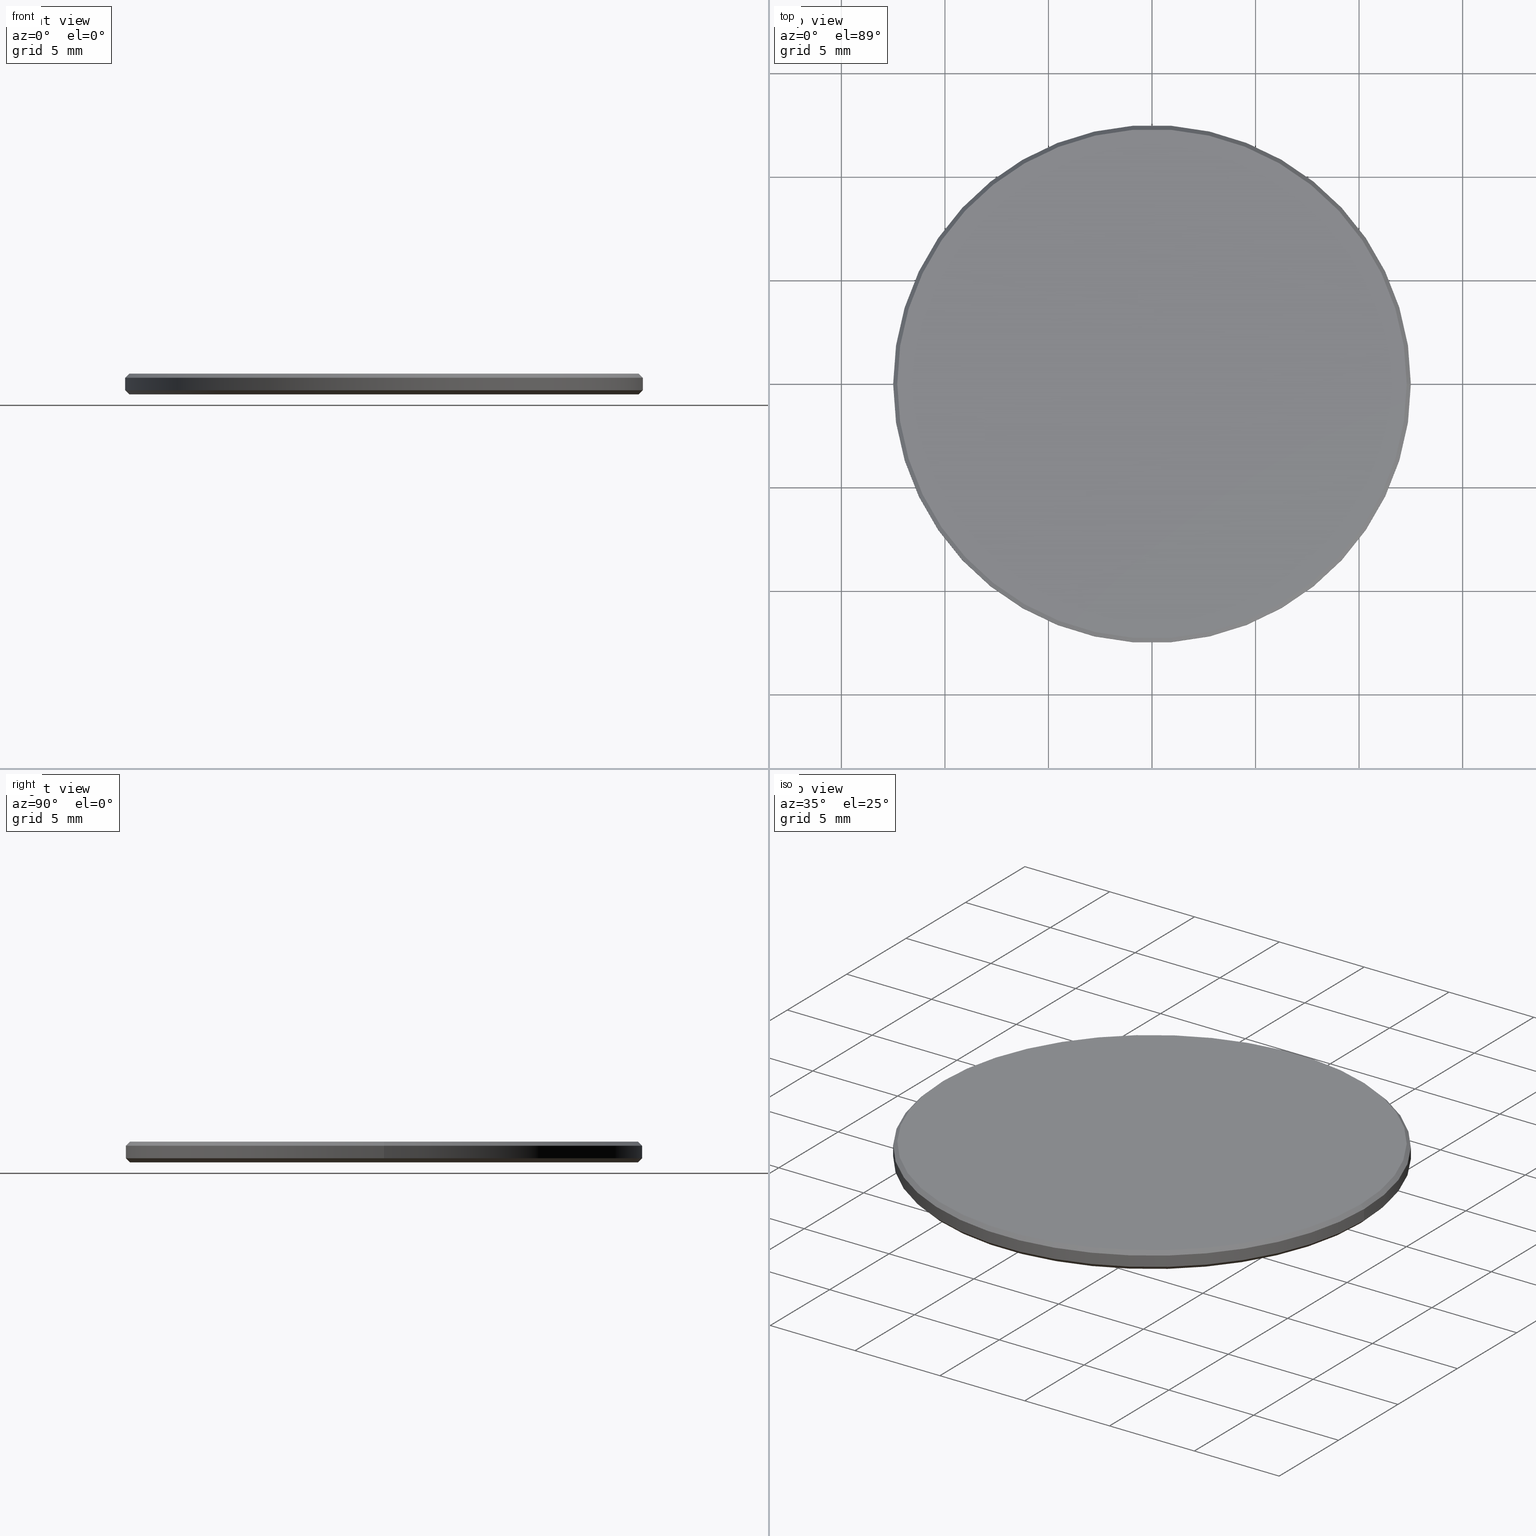
[diagram: canonical four-view strip — front | top / right | iso, engineering-drawing reading convention]
A machine part, canonical four-view strip (front | top / right | iso — engineering-drawing reading convention). The complete STEP part file that produces these views, byte-faithful:
ISO-10303-21;
HEADER;
FILE_DESCRIPTION (( 'STEP AP214' ),
    '1' );
FILE_NAME ('GNIF-170-4260-D25.STEP',
    '2024-07-19T14:30:28',
    ( '' ),
    ( '' ),
    'SwSTEP 2.0',
    'SolidWorks 2022',
    '' );
FILE_SCHEMA (( 'AUTOMOTIVE_DESIGN' ));
ENDSEC;

DATA;
#1 = FACE_OUTER_BOUND ( 'NONE', #153, .T. ) ;
#2 = ORIENTED_EDGE ( 'NONE', *, *, #102, .F. ) ;
#3 = ADVANCED_FACE ( 'NONE', ( #101 ), #23, .T. ) ;
#4 = DIRECTION ( 'NONE',  ( 1.000000000000000000, 0.000000000000000000, 0.000000000000000000 ) ) ;
#5 =( GEOMETRIC_REPRESENTATION_CONTEXT ( 3 ) GLOBAL_UNCERTAINTY_ASSIGNED_CONTEXT ( ( #178 ) ) GLOBAL_UNIT_ASSIGNED_CONTEXT ( ( #218, #55, #128 ) ) REPRESENTATION_CONTEXT ( 'NONE', 'WORKASPACE' ) );
#6 = CARTESIAN_POINT ( 'NONE',  ( 0.000000000000000000, 0.000000000000000000, 0.8000000000000029310 ) ) ;
#7 = ADVANCED_FACE ( 'NONE', ( #170 ), #237, .T. ) ;
#8 = DIRECTION ( 'NONE',  ( -0.000000000000000000, -0.000000000000000000, -1.000000000000000000 ) ) ;
#9 = DIRECTION ( 'NONE',  ( -0.000000000000000000, -0.000000000000000000, -1.000000000000000000 ) ) ;
#10 = CARTESIAN_POINT ( 'NONE',  ( 12.50000000000000000, 1.530808498934191521E-15, 1.000000000000000000 ) ) ;
#11 = PRODUCT_RELATED_PRODUCT_CATEGORY ( 'part', '', ( #181 ) ) ;
#12 = CARTESIAN_POINT ( 'NONE',  ( 12.50000000000000000, 0.000000000000000000, 0.1999999999999987899 ) ) ;
#13 = AXIS2_PLACEMENT_3D ( 'NONE', #198, #210, #45 ) ;
#14 = LINE ( 'NONE', #10, #15 ) ;
#15 = VECTOR ( 'NONE', #9, 1000.000000000000000 ) ;
#16 =( LENGTH_UNIT ( ) NAMED_UNIT ( * ) SI_UNIT ( .MILLI., .METRE. ) );
#17 = EDGE_LOOP ( 'NONE', ( #25, #239 ) ) ;
#18 = FILL_AREA_STYLE_COLOUR ( '', #213 ) ;
#19 = ORIENTED_EDGE ( 'NONE', *, *, #106, .T. ) ;
#20 = EDGE_LOOP ( 'NONE', ( #116, #65, #19, #187 ) ) ;
#21 = LINE ( 'NONE', #222, #90 ) ;
#22 = ORIENTED_EDGE ( 'NONE', *, *, #80, .T. ) ;
#23 = CYLINDRICAL_SURFACE ( 'NONE', #188, 12.50000000000000000 ) ;
#24 = CARTESIAN_POINT ( 'NONE',  ( 0.000000000000000000, 0.000000000000000000, 0.000000000000000000 ) ) ;
#25 = ORIENTED_EDGE ( 'NONE', *, *, #33, .T. ) ;
#26 = CARTESIAN_POINT ( 'NONE',  ( 0.000000000000000000, 0.000000000000000000, 1.000000000000000000 ) ) ;
#27 = CARTESIAN_POINT ( 'NONE',  ( 12.29999999999999893, 1.506315562951244216E-15, 1.000000000000000000 ) ) ;
#28 = AXIS2_PLACEMENT_3D ( 'NONE', #208, #42, #4 ) ;
#29 = ADVANCED_FACE ( 'NONE', ( #193 ), #184, .T. ) ;
#30 = DIRECTION ( 'NONE',  ( -0.000000000000000000, -0.000000000000000000, 1.000000000000000000 ) ) ;
#31 = SURFACE_STYLE_FILL_AREA ( #74 ) ;
#32 = CARTESIAN_POINT ( 'NONE',  ( 0.000000000000000000, 0.000000000000000000, 0.1999999999999987899 ) ) ;
#33 = EDGE_CURVE ( 'NONE', #151, #43, #72, .T. ) ;
#34 = AXIS2_PLACEMENT_3D ( 'NONE', #137, #84, #149 ) ;
#35 = COLOUR_RGB ( '',1.000000000000000000, 1.000000000000000000, 1.000000000000000000 ) ;
#36 = CIRCLE ( 'NONE', #73, 12.29999999999999893 ) ;
#37 = ADVANCED_BREP_SHAPE_REPRESENTATION ( 'GNIF-170-4260-D25', ( #221, #236 ), #61 ) ;
#38 = EDGE_LOOP ( 'NONE', ( #41, #135 ) ) ;
#39 = ADVANCED_FACE ( 'NONE', ( #103 ), #154, .T. ) ;
#40 = VERTEX_POINT ( 'NONE', #138 ) ;
#41 = ORIENTED_EDGE ( 'NONE', *, *, #102, .T. ) ;
#42 = DIRECTION ( 'NONE',  ( -0.000000000000000000, -0.000000000000000000, 1.000000000000000000 ) ) ;
#43 = VERTEX_POINT ( 'NONE', #134 ) ;
#44 = CIRCLE ( 'NONE', #13, 12.30000000000000249 ) ;
#45 = DIRECTION ( 'NONE',  ( 1.000000000000000000, 0.000000000000000000, 0.000000000000000000 ) ) ;
#46 = DIRECTION ( 'NONE',  ( 1.000000000000000000, 0.000000000000000000, 0.000000000000000000 ) ) ;
#47 = CARTESIAN_POINT ( 'NONE',  ( 12.30000000000000249, 0.000000000000000000, 0.000000000000000000 ) ) ;
#48 = PRODUCT_DEFINITION_CONTEXT ( 'detailed design', #228, 'design' ) ;
#49 = CARTESIAN_POINT ( 'NONE',  ( 0.000000000000000000, 0.000000000000000000, 0.8000000000000029310 ) ) ;
#50 = EDGE_CURVE ( 'NONE', #191, #105, #21, .T. ) ;
#51 =( NAMED_UNIT ( * ) SI_UNIT ( $, .STERADIAN. ) SOLID_ANGLE_UNIT ( ) );
#52 = PRODUCT_DEFINITION_SHAPE ( 'NONE', 'NONE',  #68 ) ;
#53 = UNCERTAINTY_MEASURE_WITH_UNIT (LENGTH_MEASURE( 1.000000000000000082E-05 ), #16, 'distance_accuracy_value', 'NONE');
#54 = EDGE_CURVE ( 'NONE', #105, #79, #234, .T. ) ;
#55 =( NAMED_UNIT ( * ) PLANE_ANGLE_UNIT ( ) SI_UNIT ( $, .RADIAN. ) );
#56 = ORIENTED_EDGE ( 'NONE', *, *, #142, .F. ) ;
#57 = AXIS2_PLACEMENT_3D ( 'NONE', #49, #180, #197 ) ;
#58 = AXIS2_PLACEMENT_3D ( 'NONE', #159, #95, #71 ) ;
#59 = EDGE_CURVE ( 'NONE', #105, #115, #122, .T. ) ;
#60 = CARTESIAN_POINT ( 'NONE',  ( 0.000000000000000000, 0.000000000000000000, 0.1999999999999987899 ) ) ;
#61 =( GEOMETRIC_REPRESENTATION_CONTEXT ( 3 ) GLOBAL_UNCERTAINTY_ASSIGNED_CONTEXT ( ( #53 ) ) GLOBAL_UNIT_ASSIGNED_CONTEXT ( ( #16, #97, #51 ) ) REPRESENTATION_CONTEXT ( 'NONE', 'WORKASPACE' ) );
#62 = CARTESIAN_POINT ( 'NONE',  ( 0.000000000000000000, 0.000000000000000000, 1.000000000000000000 ) ) ;
#63 = ORIENTED_EDGE ( 'NONE', *, *, #106, .F. ) ;
#64 = DIRECTION ( 'NONE',  ( -0.000000000000000000, -0.000000000000000000, -1.000000000000000000 ) ) ;
#65 = ORIENTED_EDGE ( 'NONE', *, *, #33, .F. ) ;
#66 =( GEOMETRIC_REPRESENTATION_CONTEXT ( 3 ) GLOBAL_UNCERTAINTY_ASSIGNED_CONTEXT ( ( #215 ) ) GLOBAL_UNIT_ASSIGNED_CONTEXT ( ( #141, #177, #92 ) ) REPRESENTATION_CONTEXT ( 'NONE', 'WORKASPACE' ) );
#67 = LINE ( 'NONE', #12, #147 ) ;
#68 = PRODUCT_DEFINITION ( 'δ֪', '', #69, #48 ) ;
#69 = PRODUCT_DEFINITION_FORMATION_WITH_SPECIFIED_SOURCE ( '�κ�', '', #181, .NOT_KNOWN. ) ;
#70 = DIRECTION ( 'NONE',  ( -0.7071067811865474617, 8.659560562354932858E-17, 0.7071067811865474617 ) ) ;
#71 = DIRECTION ( 'NONE',  ( 1.000000000000000000, 0.000000000000000000, 0.000000000000000000 ) ) ;
#72 = CIRCLE ( 'NONE', #201, 12.30000000000000249 ) ;
#73 = AXIS2_PLACEMENT_3D ( 'NONE', #107, #127, #196 ) ;
#74 = FILL_AREA_STYLE ('',( #163 ) ) ;
#75 = PRESENTATION_LAYER_ASSIGNMENT (  '', '', ( #176 ) ) ;
#76 = ADVANCED_FACE ( 'NONE', ( #1 ), #139, .T. ) ;
#77 = DIRECTION ( 'NONE',  ( 1.000000000000000000, 0.000000000000000000, 0.000000000000000000 ) ) ;
#78 = DIRECTION ( 'NONE',  ( 0.000000000000000000, 0.000000000000000000, 1.000000000000000000 ) ) ;
#79 = VERTEX_POINT ( 'NONE', #209 ) ;
#80 = EDGE_CURVE ( 'NONE', #145, #115, #167, .T. ) ;
#81 = CIRCLE ( 'NONE', #232, 12.29999999999999893 ) ;
#82 = CIRCLE ( 'NONE', #58, 12.50000000000000000 ) ;
#83 = APPLICATION_CONTEXT ( 'automotive_design' ) ;
#84 = DIRECTION ( 'NONE',  ( 0.000000000000000000, 0.000000000000000000, -1.000000000000000000 ) ) ;
#85 = DIRECTION ( 'NONE',  ( 0.000000000000000000, 0.000000000000000000, 1.000000000000000000 ) ) ;
#86 = ORIENTED_EDGE ( 'NONE', *, *, #50, .T. ) ;
#87 = DIRECTION ( 'NONE',  ( 0.000000000000000000, 0.000000000000000000, -1.000000000000000000 ) ) ;
#88 = DIRECTION ( 'NONE',  ( 1.000000000000000000, 0.000000000000000000, 0.000000000000000000 ) ) ;
#89 = CARTESIAN_POINT ( 'NONE',  ( -12.29999999999999893, 0.000000000000000000, 1.000000000000000000 ) ) ;
#90 = VECTOR ( 'NONE', #173, 1000.000000000000000 ) ;
#91 = LINE ( 'NONE', #194, #94 ) ;
#92 =( NAMED_UNIT ( * ) SI_UNIT ( $, .STERADIAN. ) SOLID_ANGLE_UNIT ( ) );
#93 = DIRECTION ( 'NONE',  ( 1.000000000000000000, 0.000000000000000000, 0.000000000000000000 ) ) ;
#94 = VECTOR ( 'NONE', #70, 1000.000000000000114 ) ;
#95 = DIRECTION ( 'NONE',  ( -0.000000000000000000, -0.000000000000000000, 1.000000000000000000 ) ) ;
#96 = ORIENTED_EDGE ( 'NONE', *, *, #150, .T. ) ;
#97 =( NAMED_UNIT ( * ) PLANE_ANGLE_UNIT ( ) SI_UNIT ( $, .RADIAN. ) );
#98 = ORIENTED_EDGE ( 'NONE', *, *, #59, .F. ) ;
#99 = DIRECTION ( 'NONE',  ( 0.000000000000000000, 0.000000000000000000, -1.000000000000000000 ) ) ;
#100 = ORIENTED_EDGE ( 'NONE', *, *, #200, .T. ) ;
#101 = FACE_OUTER_BOUND ( 'NONE', #225, .T. ) ;
#102 = EDGE_CURVE ( 'NONE', #191, #40, #36, .T. ) ;
#103 = FACE_OUTER_BOUND ( 'NONE', #38, .T. ) ;
#104 = AXIS2_PLACEMENT_3D ( 'NONE', #60, #207, #46 ) ;
#105 = VERTEX_POINT ( 'NONE', #229 ) ;
#106 = EDGE_CURVE ( 'NONE', #151, #145, #67, .T. ) ;
#107 = CARTESIAN_POINT ( 'NONE',  ( 0.000000000000000000, 0.000000000000000000, 1.000000000000000000 ) ) ;
#108 = DIRECTION ( 'NONE',  ( -1.000000000000000000, 0.000000000000000000, 0.000000000000000000 ) ) ;
#109 = DIRECTION ( 'NONE',  ( 0.7071067811865474617, 0.000000000000000000, 0.7071067811865474617 ) ) ;
#110 = PLANE ( 'NONE',  #199 ) ;
#111 = DIRECTION ( 'NONE',  ( 0.000000000000000000, 0.000000000000000000, 1.000000000000000000 ) ) ;
#112 = CIRCLE ( 'NONE', #57, 12.50000000000000000 ) ;
#113 = ORIENTED_EDGE ( 'NONE', *, *, #54, .T. ) ;
#114 = FILL_AREA_STYLE ('',( #18 ) ) ;
#115 = VERTEX_POINT ( 'NONE', #195 ) ;
#116 = ORIENTED_EDGE ( 'NONE', *, *, #158, .F. ) ;
#117 = EDGE_LOOP ( 'NONE', ( #56, #203, #219, #146 ) ) ;
#118 = ORIENTED_EDGE ( 'NONE', *, *, #119, .F. ) ;
#119 = EDGE_CURVE ( 'NONE', #43, #151, #44, .T. ) ;
#120 = ORIENTED_EDGE ( 'NONE', *, *, #183, .F. ) ;
#121 = EDGE_LOOP ( 'NONE', ( #120, #96, #166, #100 ) ) ;
#122 = LINE ( 'NONE', #169, #240 ) ;
#123 = VECTOR ( 'NONE', #157, 1000.000000000000000 ) ;
#124 = ADVANCED_FACE ( 'NONE', ( #125 ), #161, .T. ) ;
#125 = FACE_OUTER_BOUND ( 'NONE', #20, .T. ) ;
#126 = FACE_OUTER_BOUND ( 'NONE', #17, .T. ) ;
#127 = DIRECTION ( 'NONE',  ( 0.000000000000000000, 0.000000000000000000, 1.000000000000000000 ) ) ;
#128 =( NAMED_UNIT ( * ) SI_UNIT ( $, .STERADIAN. ) SOLID_ANGLE_UNIT ( ) );
#129 = APPLICATION_PROTOCOL_DEFINITION ( 'draft international standard', 'automotive_design', 1998, #83 ) ;
#130 = DIRECTION ( 'NONE',  ( 1.000000000000000000, 0.000000000000000000, -0.000000000000000000 ) ) ;
#131 = AXIS2_PLACEMENT_3D ( 'NONE', #32, #30, #93 ) ;
#132 = PRODUCT_CONTEXT ( 'NONE', #83, 'mechanical' ) ;
#133 = EDGE_LOOP ( 'NONE', ( #118, #186, #171, #63 ) ) ;
#134 = CARTESIAN_POINT ( 'NONE',  ( -12.30000000000000249, 1.518562030942718164E-15, 0.000000000000000000 ) ) ;
#135 = ORIENTED_EDGE ( 'NONE', *, *, #142, .T. ) ;
#136 = ORIENTED_EDGE ( 'NONE', *, *, #183, .T. ) ;
#137 = CARTESIAN_POINT ( 'NONE',  ( 0.000000000000000000, 0.000000000000000000, 1.000000000000000000 ) ) ;
#138 = CARTESIAN_POINT ( 'NONE',  ( 12.29999999999999893, 1.518562030942717967E-15, 1.000000000000000000 ) ) ;
#139 = CONICAL_SURFACE ( 'NONE', #34, 12.29999999999999893, 0.7853981633974612686 ) ;
#140 = AXIS2_PLACEMENT_3D ( 'NONE', #26, #175, #108 ) ;
#141 =( LENGTH_UNIT ( ) NAMED_UNIT ( * ) SI_UNIT ( .MILLI., .METRE. ) );
#142 = EDGE_CURVE ( 'NONE', #40, #191, #81, .T. ) ;
#143 = DIRECTION ( 'NONE',  ( 0.000000000000000000, 0.000000000000000000, 1.000000000000000000 ) ) ;
#144 = SURFACE_STYLE_USAGE ( .BOTH. , #182 ) ;
#145 = VERTEX_POINT ( 'NONE', #214 ) ;
#146 = ORIENTED_EDGE ( 'NONE', *, *, #50, .F. ) ;
#147 = VECTOR ( 'NONE', #109, 1000.000000000000114 ) ;
#148 = PRESENTATION_LAYER_ASSIGNMENT (  '', '', ( #192 ) ) ;
#149 = DIRECTION ( 'NONE',  ( -1.000000000000000000, 0.000000000000000000, 0.000000000000000000 ) ) ;
#150 = EDGE_CURVE ( 'NONE', #79, #105, #112, .T. ) ;
#151 = VERTEX_POINT ( 'NONE', #47 ) ;
#152 = DIRECTION ( 'NONE',  ( -1.000000000000000000, 0.000000000000000000, 0.000000000000000000 ) ) ;
#153 = EDGE_LOOP ( 'NONE', ( #220, #2, #86, #190 ) ) ;
#154 = PLANE ( 'NONE',  #216 ) ;
#155 = LINE ( 'NONE', #27, #123 ) ;
#156 = CLOSED_SHELL ( 'NONE', ( #7, #29, #3, #162, #39, #224, #76, #124 ) ) ;
#157 = DIRECTION ( 'NONE',  ( 0.7071067811865566766, 8.659560562355045024E-17, -0.7071067811865383579 ) ) ;
#158 = EDGE_CURVE ( 'NONE', #43, #115, #91, .T. ) ;
#159 = CARTESIAN_POINT ( 'NONE',  ( 0.000000000000000000, 0.000000000000000000, 0.1999999999999987899 ) ) ;
#160 = FACE_OUTER_BOUND ( 'NONE', #121, .T. ) ;
#161 = CONICAL_SURFACE ( 'NONE', #131, 12.50000000000000000, 0.7853981633974482790 ) ;
#162 = ADVANCED_FACE ( 'NONE', ( #160 ), #231, .T. ) ;
#163 = FILL_AREA_STYLE_COLOUR ( '', #35 ) ;
#164 = SHAPE_DEFINITION_REPRESENTATION ( #52, #37 ) ;
#165 = PRESENTATION_STYLE_ASSIGNMENT (( #144 ) ) ;
#166 = ORIENTED_EDGE ( 'NONE', *, *, #59, .T. ) ;
#167 = CIRCLE ( 'NONE', #104, 12.50000000000000000 ) ;
#168 = MECHANICAL_DESIGN_GEOMETRIC_PRESENTATION_REPRESENTATION (  '', ( #192 ), #66 ) ;
#169 = CARTESIAN_POINT ( 'NONE',  ( -12.50000000000000000, 0.000000000000000000, 1.000000000000000000 ) ) ;
#170 = FACE_OUTER_BOUND ( 'NONE', #133, .T. ) ;
#171 = ORIENTED_EDGE ( 'NONE', *, *, #80, .F. ) ;
#172 = AXIS2_PLACEMENT_3D ( 'NONE', #205, #87, #152 ) ;
#173 = DIRECTION ( 'NONE',  ( -0.7071067811865566766, 0.000000000000000000, -0.7071067811865383579 ) ) ;
#174 = DIRECTION ( 'NONE',  ( -1.000000000000000000, 0.000000000000000000, 0.000000000000000000 ) ) ;
#175 = DIRECTION ( 'NONE',  ( -0.000000000000000000, -0.000000000000000000, -1.000000000000000000 ) ) ;
#176 = STYLED_ITEM ( 'NONE', ( #165 ), #37 ) ;
#177 =( NAMED_UNIT ( * ) PLANE_ANGLE_UNIT ( ) SI_UNIT ( $, .RADIAN. ) );
#178 = UNCERTAINTY_MEASURE_WITH_UNIT (LENGTH_MEASURE( 1.000000000000000082E-05 ), #218, 'distance_accuracy_value', 'NONE');
#179 = CARTESIAN_POINT ( 'NONE',  ( 0.000000000000000000, 0.000000000000000000, 0.000000000000000000 ) ) ;
#180 = DIRECTION ( 'NONE',  ( 0.000000000000000000, 0.000000000000000000, -1.000000000000000000 ) ) ;
#181 = PRODUCT ( 'GNIF-170-4260-D25', 'GNIF-170-4260-D25', '', ( #132 ) ) ;
#182 = SURFACE_SIDE_STYLE ('',( #185 ) ) ;
#183 = EDGE_CURVE ( 'NONE', #79, #145, #14, .T. ) ;
#184 = CONICAL_SURFACE ( 'NONE', #172, 12.29999999999999893, 0.7853981633974612686 ) ;
#185 = SURFACE_STYLE_FILL_AREA ( #114 ) ;
#186 = ORIENTED_EDGE ( 'NONE', *, *, #158, .T. ) ;
#187 = ORIENTED_EDGE ( 'NONE', *, *, #200, .F. ) ;
#188 = AXIS2_PLACEMENT_3D ( 'NONE', #62, #189, #174 ) ;
#189 = DIRECTION ( 'NONE',  ( -0.000000000000000000, -0.000000000000000000, -1.000000000000000000 ) ) ;
#190 = ORIENTED_EDGE ( 'NONE', *, *, #150, .F. ) ;
#191 = VERTEX_POINT ( 'NONE', #89 ) ;
#192 = STYLED_ITEM ( 'NONE', ( #235 ), #221 ) ;
#193 = FACE_OUTER_BOUND ( 'NONE', #117, .T. ) ;
#194 = CARTESIAN_POINT ( 'NONE',  ( -12.50000000000000000, 1.530808498934191521E-15, 0.1999999999999987899 ) ) ;
#195 = CARTESIAN_POINT ( 'NONE',  ( -12.50000000000000000, 0.000000000000000000, 0.1999999999999987899 ) ) ;
#196 = DIRECTION ( 'NONE',  ( 1.000000000000000000, 0.000000000000000000, 0.000000000000000000 ) ) ;
#197 = DIRECTION ( 'NONE',  ( 1.000000000000000000, 0.000000000000000000, 0.000000000000000000 ) ) ;
#198 = CARTESIAN_POINT ( 'NONE',  ( 0.000000000000000000, 0.000000000000000000, 0.000000000000000000 ) ) ;
#199 = AXIS2_PLACEMENT_3D ( 'NONE', #179, #143, #130 ) ;
#200 = EDGE_CURVE ( 'NONE', #115, #145, #82, .T. ) ;
#201 = AXIS2_PLACEMENT_3D ( 'NONE', #24, #8, #88 ) ;
#202 = AXIS2_PLACEMENT_3D ( 'NONE', #6, #99, #226 ) ;
#203 = ORIENTED_EDGE ( 'NONE', *, *, #204, .T. ) ;
#204 = EDGE_CURVE ( 'NONE', #40, #79, #155, .T. ) ;
#205 = CARTESIAN_POINT ( 'NONE',  ( 0.000000000000000000, 0.000000000000000000, 1.000000000000000000 ) ) ;
#206 = MECHANICAL_DESIGN_GEOMETRIC_PRESENTATION_REPRESENTATION (  '', ( #176 ), #5 ) ;
#207 = DIRECTION ( 'NONE',  ( -0.000000000000000000, -0.000000000000000000, 1.000000000000000000 ) ) ;
#208 = CARTESIAN_POINT ( 'NONE',  ( 0.000000000000000000, 0.000000000000000000, 0.1999999999999987899 ) ) ;
#209 = CARTESIAN_POINT ( 'NONE',  ( 12.50000000000000000, 1.530808498934191521E-15, 0.8000000000000029310 ) ) ;
#210 = DIRECTION ( 'NONE',  ( -0.000000000000000000, -0.000000000000000000, -1.000000000000000000 ) ) ;
#211 = SURFACE_SIDE_STYLE ('',( #31 ) ) ;
#212 = CARTESIAN_POINT ( 'NONE',  ( 0.000000000000000000, 0.000000000000000000, 1.000000000000000000 ) ) ;
#213 = COLOUR_RGB ( '',1.000000000000000000, 1.000000000000000000, 1.000000000000000000 ) ;
#214 = CARTESIAN_POINT ( 'NONE',  ( 12.50000000000000000, 1.530808498934191521E-15, 0.1999999999999987899 ) ) ;
#215 = UNCERTAINTY_MEASURE_WITH_UNIT (LENGTH_MEASURE( 1.000000000000000082E-05 ), #141, 'distance_accuracy_value', 'NONE');
#216 = AXIS2_PLACEMENT_3D ( 'NONE', #227, #85, #223 ) ;
#217 = APPLICATION_PROTOCOL_DEFINITION ( 'draft international standard', 'automotive_design', 1998, #228 ) ;
#218 =( LENGTH_UNIT ( ) NAMED_UNIT ( * ) SI_UNIT ( .MILLI., .METRE. ) );
#219 = ORIENTED_EDGE ( 'NONE', *, *, #54, .F. ) ;
#220 = ORIENTED_EDGE ( 'NONE', *, *, #204, .F. ) ;
#221 = MANIFOLD_SOLID_BREP ( '����1', #156 ) ;
#222 = CARTESIAN_POINT ( 'NONE',  ( -12.29999999999999893, 0.000000000000000000, 1.000000000000000000 ) ) ;
#223 = DIRECTION ( 'NONE',  ( 1.000000000000000000, 0.000000000000000000, -0.000000000000000000 ) ) ;
#224 = ADVANCED_FACE ( 'NONE', ( #126 ), #110, .F. ) ;
#225 = EDGE_LOOP ( 'NONE', ( #113, #136, #22, #98 ) ) ;
#226 = DIRECTION ( 'NONE',  ( 1.000000000000000000, 0.000000000000000000, 0.000000000000000000 ) ) ;
#227 = CARTESIAN_POINT ( 'NONE',  ( 0.000000000000000000, 0.000000000000000000, 1.000000000000000000 ) ) ;
#228 = APPLICATION_CONTEXT ( 'automotive_design' ) ;
#229 = CARTESIAN_POINT ( 'NONE',  ( -12.50000000000000000, 0.000000000000000000, 0.8000000000000029310 ) ) ;
#230 = SURFACE_STYLE_USAGE ( .BOTH. , #211 ) ;
#231 = CYLINDRICAL_SURFACE ( 'NONE', #140, 12.50000000000000000 ) ;
#232 = AXIS2_PLACEMENT_3D ( 'NONE', #212, #111, #233 ) ;
#233 = DIRECTION ( 'NONE',  ( 1.000000000000000000, 0.000000000000000000, 0.000000000000000000 ) ) ;
#234 = CIRCLE ( 'NONE', #202, 12.50000000000000000 ) ;
#235 = PRESENTATION_STYLE_ASSIGNMENT (( #230 ) ) ;
#236 = AXIS2_PLACEMENT_3D ( 'NONE', #238, #78, #77 ) ;
#237 = CONICAL_SURFACE ( 'NONE', #28, 12.50000000000000000, 0.7853981633974482790 ) ;
#238 = CARTESIAN_POINT ( 'NONE',  ( 0.000000000000000000, 0.000000000000000000, 0.000000000000000000 ) ) ;
#239 = ORIENTED_EDGE ( 'NONE', *, *, #119, .T. ) ;
#240 = VECTOR ( 'NONE', #64, 1000.000000000000000 ) ;
ENDSEC;
END-ISO-10303-21;
